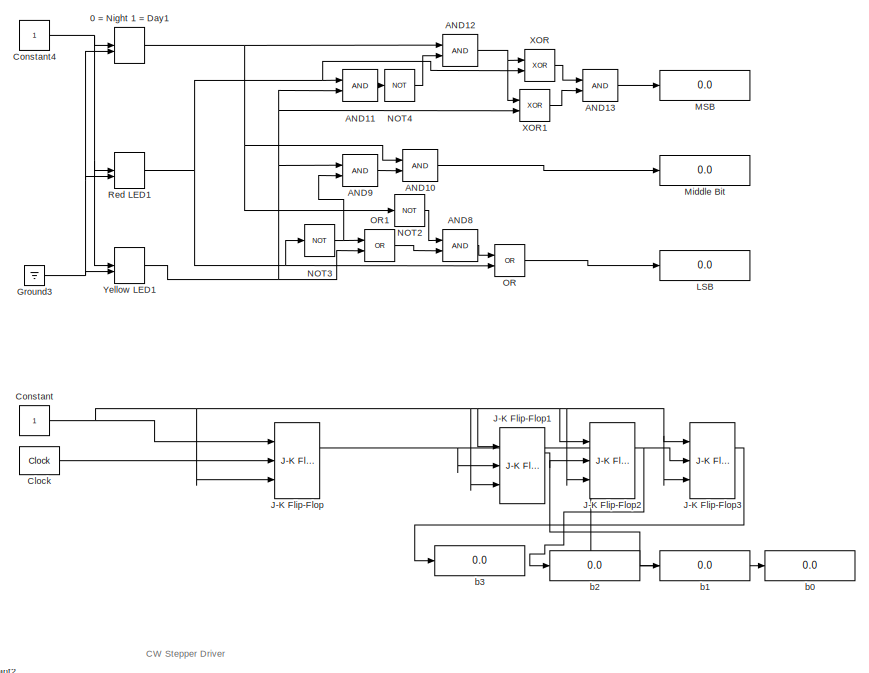
[diagram: root canvas - part 1/2, full width, top band]
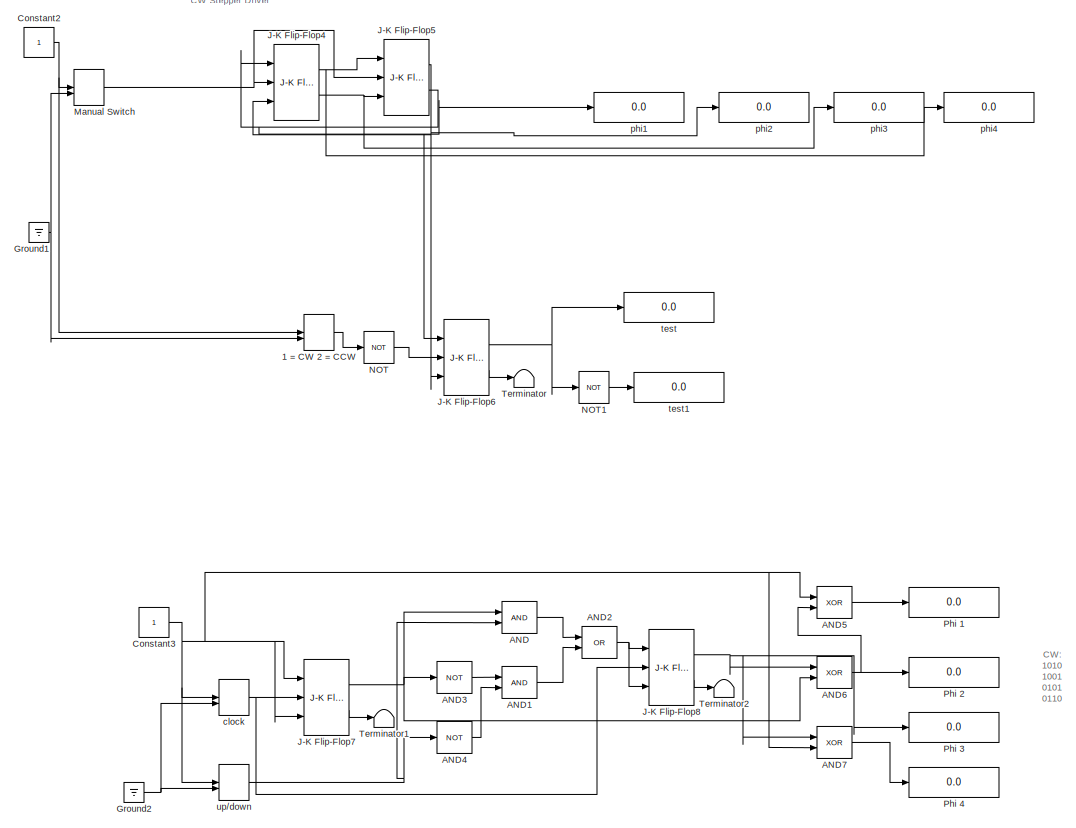
[diagram: root canvas - part 2/2, full width, bottom band]
MODEL slx_bd73f83905e0
KIND model
CONFIG AbsTol = auto
CONFIG EnableMultiTasking = off
CONFIG FixedStep = auto
CONFIG MaxStep = auto
CONFIG MinStep = auto
CONFIG RelTol = 1e-3
CONFIG SampleTimeConstraint = Unconstrained
CONFIG Solver = VariableStepAuto
CONFIG SolverName = VariableStepAuto
CONFIG StartTime = 0.0
CONFIG StopTime = Inf
BLOCK [ManualSwitch] 0 = Night 1 = Day1
BLOCK [ManualSwitch] 1 = CW 2 = CCW
  Commented = on
BLOCK [Logic] AND
  AllPortsSameDT = off
  IconShape = distinctive
  OutDataTypeStr = boolean
  Ports = [2, 1]
BLOCK [Logic] AND1
  AllPortsSameDT = off
  IconShape = distinctive
  OutDataTypeStr = boolean
  Ports = [2, 1]
BLOCK [Logic] AND10
  AllPortsSameDT = off
  IconShape = distinctive
  OutDataTypeStr = boolean
  Ports = [2, 1]
BLOCK [Logic] AND11
  AllPortsSameDT = off
  IconShape = distinctive
  OutDataTypeStr = boolean
  Ports = [2, 1]
BLOCK [Logic] AND12
  AllPortsSameDT = off
  IconShape = distinctive
  OutDataTypeStr = boolean
  Ports = [2, 1]
BLOCK [Logic] AND13
  AllPortsSameDT = off
  IconShape = distinctive
  OutDataTypeStr = boolean
  Ports = [2, 1]
BLOCK [Logic] AND2
  AllPortsSameDT = off
  IconShape = distinctive
  Operator = OR
  OutDataTypeStr = boolean
  Ports = [2, 1]
BLOCK [Logic] AND3
  AllPortsSameDT = off
  IconShape = distinctive
  Operator = NOT
  OutDataTypeStr = boolean
  Ports = [1, 1]
BLOCK [Logic] AND4
  AllPortsSameDT = off
  IconShape = distinctive
  Operator = NOT
  OutDataTypeStr = boolean
  Ports = [1, 1]
BLOCK [Logic] AND5
  AllPortsSameDT = off
  IconShape = distinctive
  Operator = XOR
  OutDataTypeStr = boolean
  Ports = [2, 1]
BLOCK [Logic] AND6
  AllPortsSameDT = off
  IconShape = distinctive
  Operator = XOR
  OutDataTypeStr = boolean
  Ports = [2, 1]
BLOCK [Logic] AND7
  AllPortsSameDT = off
  IconShape = distinctive
  Operator = XOR
  OutDataTypeStr = boolean
  Ports = [2, 1]
BLOCK [Logic] AND8
  AllPortsSameDT = off
  IconShape = distinctive
  OutDataTypeStr = boolean
  Ports = [2, 1]
BLOCK [Logic] AND9
  AllPortsSameDT = off
  IconShape = distinctive
  OutDataTypeStr = boolean
  Ports = [2, 1]
BLOCK [Reference] Clock  REF=simulink_extras/Flip Flops/Clock
  Ports = [0, 1]
  SourceBlock = simulink_extras/Flip Flops/Clock
  SourceProductBaseCode = SL
  SourceProductName = Simulink
  SourceType = Digital clock
BLOCK [Constant] Constant
  OutDataTypeStr = boolean
BLOCK [Constant] Constant2
  Commented = on
  OutDataTypeStr = boolean
BLOCK [Constant] Constant3
  OutDataTypeStr = boolean
BLOCK [Constant] Constant4
  OutDataTypeStr = boolean
BLOCK [Ground] Ground1
  Commented = on
BLOCK [Ground] Ground2
BLOCK [Ground] Ground3
BLOCK [Reference] J-K Flip-Flop  REF=simulink_extras/Flip Flops/J-K
Flip-Flop
  Ports = [3, 2]
  SourceBlock = simulink_extras/Flip Flops/J-K\nFlip-Flop
  SourceProductBaseCode = SL
  SourceProductName = Simulink
  SourceType = JKFlipFlop
BLOCK [Reference] J-K Flip-Flop1  REF=simulink_extras/Flip Flops/J-K
Flip-Flop
  Ports = [3, 2]
  SourceBlock = simulink_extras/Flip Flops/J-K\nFlip-Flop
  SourceProductBaseCode = SL
  SourceProductName = Simulink
  SourceType = JKFlipFlop
BLOCK [Reference] J-K Flip-Flop2  REF=simulink_extras/Flip Flops/J-K
Flip-Flop
  Ports = [3, 2]
  SourceBlock = simulink_extras/Flip Flops/J-K\nFlip-Flop
  SourceProductBaseCode = SL
  SourceProductName = Simulink
  SourceType = JKFlipFlop
BLOCK [Reference] J-K Flip-Flop3  REF=simulink_extras/Flip Flops/J-K
Flip-Flop
  Ports = [3, 2]
  SourceBlock = simulink_extras/Flip Flops/J-K\nFlip-Flop
  SourceProductBaseCode = SL
  SourceProductName = Simulink
  SourceType = JKFlipFlop
BLOCK [Reference] J-K Flip-Flop4  REF=simulink_extras/Flip Flops/J-K
Flip-Flop
  Commented = on
  Ports = [3, 2]
  SourceBlock = simulink_extras/Flip Flops/J-K\nFlip-Flop
  SourceProductBaseCode = SL
  SourceProductName = Simulink
  SourceType = JKFlipFlop
BLOCK [Reference] J-K Flip-Flop5  REF=simulink_extras/Flip Flops/J-K
Flip-Flop
  Commented = on
  Ports = [3, 2]
  SourceBlock = simulink_extras/Flip Flops/J-K\nFlip-Flop
  SourceProductBaseCode = SL
  SourceProductName = Simulink
  SourceType = JKFlipFlop
BLOCK [Reference] J-K Flip-Flop6  REF=simulink_extras/Flip Flops/J-K
Flip-Flop
  Commented = on
  Ports = [3, 2]
  SourceBlock = simulink_extras/Flip Flops/J-K\nFlip-Flop
  SourceProductBaseCode = SL
  SourceProductName = Simulink
  SourceType = JKFlipFlop
BLOCK [Reference] J-K Flip-Flop7  REF=simulink_extras/Flip Flops/J-K
Flip-Flop
  Ports = [3, 2]
  SourceBlock = simulink_extras/Flip Flops/J-K\nFlip-Flop
  SourceProductBaseCode = SL
  SourceProductName = Simulink
  SourceType = JKFlipFlop
BLOCK [Reference] J-K Flip-Flop8  REF=simulink_extras/Flip Flops/J-K
Flip-Flop
  Ports = [3, 2]
  SourceBlock = simulink_extras/Flip Flops/J-K\nFlip-Flop
  SourceProductBaseCode = SL
  SourceProductName = Simulink
  SourceType = JKFlipFlop
BLOCK [Display] LSB
  Decimation = 1
  Ports = [1]
BLOCK [Display] MSB
  Decimation = 1
  Ports = [1]
BLOCK [ManualSwitch] Manual Switch
  Commented = on
  CurrentSetting = 0
BLOCK [Display] Middle Bit
  Decimation = 1
  Ports = [1]
BLOCK [Logic] NOT
  AllPortsSameDT = off
  Commented = on
  IconShape = distinctive
  Operator = NOT
  OutDataTypeStr = boolean
  Ports = [1, 1]
BLOCK [Logic] NOT1
  AllPortsSameDT = off
  Commented = on
  IconShape = distinctive
  Operator = NOT
  OutDataTypeStr = boolean
  Ports = [1, 1]
BLOCK [Logic] NOT2
  AllPortsSameDT = off
  IconShape = distinctive
  Operator = NOT
  OutDataTypeStr = boolean
  Ports = [1, 1]
BLOCK [Logic] NOT3
  AllPortsSameDT = off
  IconShape = distinctive
  Operator = NOT
  OutDataTypeStr = boolean
  Ports = [1, 1]
BLOCK [Logic] NOT4
  AllPortsSameDT = off
  IconShape = distinctive
  Operator = NOT
  OutDataTypeStr = boolean
  Ports = [1, 1]
BLOCK [Logic] OR
  AllPortsSameDT = off
  IconShape = distinctive
  Operator = OR
  OutDataTypeStr = boolean
  Ports = [2, 1]
BLOCK [Logic] OR1
  AllPortsSameDT = off
  IconShape = distinctive
  Operator = OR
  OutDataTypeStr = boolean
  Ports = [2, 1]
BLOCK [Display] Phi 1
  Decimation = 1
  Ports = [1]
BLOCK [Display] Phi 2
  Decimation = 1
  Ports = [1]
BLOCK [Display] Phi 3
  Decimation = 1
  Ports = [1]
BLOCK [Display] Phi 4
  Decimation = 1
  Ports = [1]
BLOCK [ManualSwitch] Red LED1
  CurrentSetting = 0
BLOCK [Terminator] Terminator
  Commented = on
BLOCK [Terminator] Terminator1
BLOCK [Terminator] Terminator2
BLOCK [Logic] XOR
  AllPortsSameDT = off
  IconShape = distinctive
  Operator = XOR
  OutDataTypeStr = boolean
  Ports = [2, 1]
BLOCK [Logic] XOR1
  AllPortsSameDT = off
  IconShape = distinctive
  Operator = XOR
  OutDataTypeStr = boolean
  Ports = [2, 1]
BLOCK [ManualSwitch] Yellow LED1
  CurrentSetting = 0
BLOCK [Display] b0
  Decimation = 1
  Ports = [1]
BLOCK [Display] b1
  Decimation = 1
  Ports = [1]
BLOCK [Display] b2
  Decimation = 1
  Ports = [1]
BLOCK [Display] b3
  Decimation = 1
  Ports = [1]
BLOCK [ManualSwitch] clock
  CurrentSetting = 0
BLOCK [Display] phi1
  Commented = on
  Decimation = 1
  Ports = [1]
BLOCK [Display] phi2
  Commented = on
  Decimation = 1
  Ports = [1]
BLOCK [Display] phi3
  Commented = on
  Decimation = 1
  Ports = [1]
BLOCK [Display] phi4
  Commented = on
  Decimation = 1
  Ports = [1]
BLOCK [Display] test
  Commented = on
  Decimation = 1
  Ports = [1]
BLOCK [Display] test1
  Commented = on
  Decimation = 1
  Ports = [1]
BLOCK [ManualSwitch] up//down
ANNOTATION (root): CW Stepper Driver
ANNOTATION (root): CW: 1010 1001 0101 0110
NET 0 = Night 1 = Day1:1 -> AND10:1, AND12:1, NOT2:1
LINE 1 = CW 2 = CCW:1 -> NOT:1
LINE AND10:1 -> Middle Bit:1
LINE AND11:1 -> NOT4:1
NET AND12:1 -> XOR1:1, XOR:1
LINE AND13:1 -> MSB:1
LINE AND1:1 -> AND2:2
NET AND2:1 -> J-K Flip-Flop8:1, J-K Flip-Flop8:3
LINE AND3:1 -> AND1:1
LINE AND4:1 -> AND1:2
LINE AND5:1 -> Phi 1:1
NET AND6:1 -> AND5:2, Phi 2:1
LINE AND7:1 -> Phi 4:1
LINE AND8:1 -> OR:1
LINE AND9:1 -> AND10:2
LINE AND:1 -> AND2:1
LINE Clock:1 -> J-K Flip-Flop:2
NET Constant2:1 -> 1 = CW 2 = CCW:1, Manual Switch:1
NET Constant3:1 -> AND5:1, AND7:2, J-K Flip-Flop7:1, J-K Flip-Flop7:3, clock:1, up//down:1
NET Constant4:1 -> 0 = Night 1 = Day1:1, Red LED1:1, Yellow LED1:1
NET Constant:1 -> J-K Flip-Flop1:1, J-K Flip-Flop1:3, J-K Flip-Flop2:1, J-K Flip-Flop2:3, J-K Flip-Flop3:1, J-K Flip-Flop3:3, J-K Flip-Flop:1, J-K Flip-Flop:3
NET Ground1:1 -> 1 = CW 2 = CCW:2, Manual Switch:2
NET Ground2:1 -> clock:2, up//down:2
NET Ground3:1 -> 0 = Night 1 = Day1:2, Red LED1:2, Yellow LED1:2
NET J-K Flip-Flop1:1 -> J-K Flip-Flop2:2, b1:1
NET J-K Flip-Flop2:1 -> J-K Flip-Flop3:2, b2:1
LINE J-K Flip-Flop3:1 -> b3:1
NET J-K Flip-Flop4:1 -> J-K Flip-Flop5:1, phi4:1
NET J-K Flip-Flop4:2 -> J-K Flip-Flop5:3, phi3:1
NET J-K Flip-Flop5:1 -> J-K Flip-Flop4:3, J-K Flip-Flop6:3, phi2:1
NET J-K Flip-Flop5:2 -> J-K Flip-Flop4:1, J-K Flip-Flop6:1, phi1:1
NET J-K Flip-Flop6:1 -> NOT1:1, test:1
LINE J-K Flip-Flop6:2 -> Terminator:1
NET J-K Flip-Flop7:1 -> AND3:1, AND6:2, AND:1
LINE J-K Flip-Flop7:2 -> Terminator1:1
NET J-K Flip-Flop8:1 -> AND6:1, AND7:1, Phi 3:1
LINE J-K Flip-Flop8:2 -> Terminator2:1
NET J-K Flip-Flop:1 -> J-K Flip-Flop1:2, b0:1
NET Manual Switch:1 -> J-K Flip-Flop4:2, J-K Flip-Flop5:2
LINE NOT1:1 -> test1:1
LINE NOT2:1 -> AND8:1
NET NOT3:1 -> AND9:2, OR1:1
LINE NOT4:1 -> AND12:2
LINE NOT:1 -> J-K Flip-Flop6:2
LINE OR1:1 -> AND8:2
LINE OR:1 -> LSB:1
NET Red LED1:1 -> AND11:1, NOT3:1, OR:2, XOR:2
LINE XOR1:1 -> AND13:2
LINE XOR:1 -> AND13:1
NET Yellow LED1:1 -> AND11:2, AND9:1, OR1:2, XOR1:2
NET clock:1 -> J-K Flip-Flop7:2, J-K Flip-Flop8:2
NET up//down:1 -> AND4:1, AND:2
note: NET lines group one-source signal fan-out (src -> all destinations, sorted); 1:1 wires keep LINE
